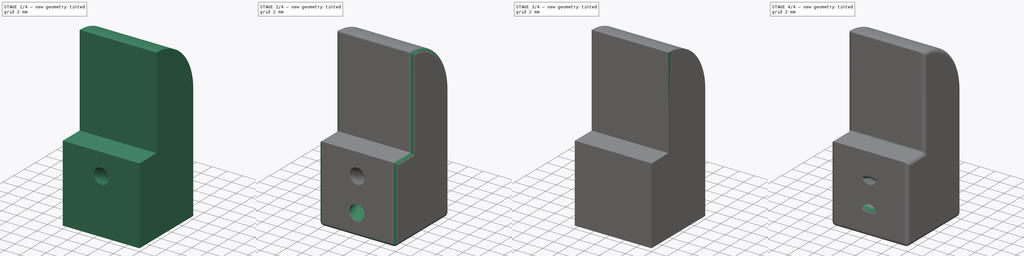
[diagram: build sequence overview — one tinted view per stage of 4, left to right]
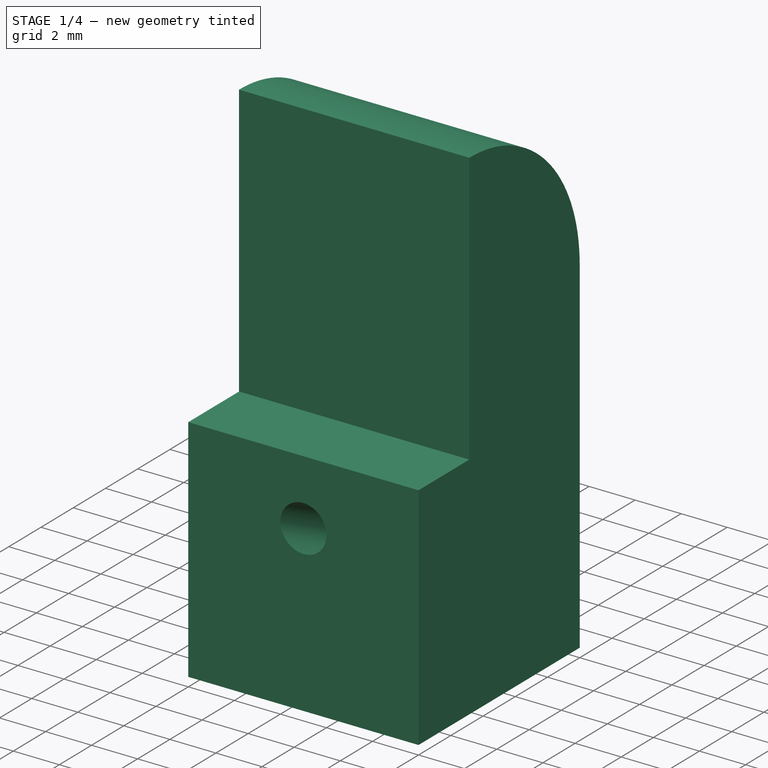
[diagram: stage 1 of 4 — iso view after this stage's code; geometry added in this stage tinted green]
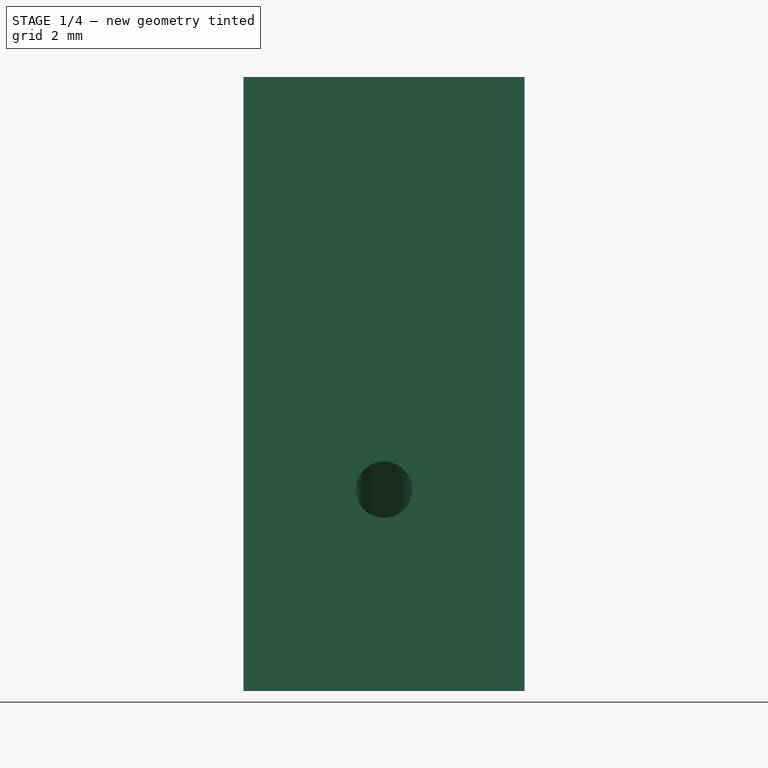
[diagram: stage 1 of 4 — front view after this stage's code; geometry added in this stage tinted green]
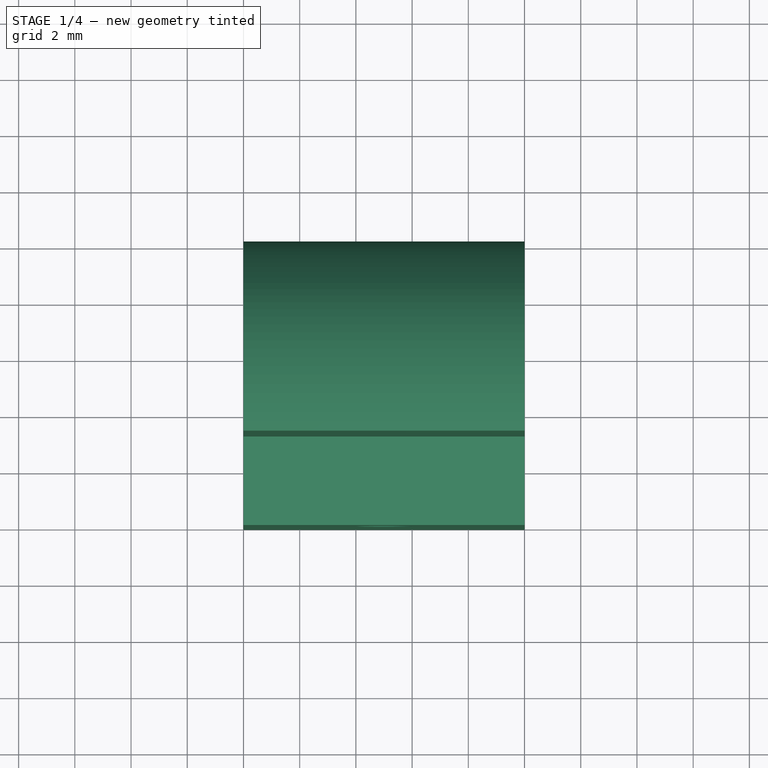
[diagram: stage 1 of 4 — top view after this stage's code; geometry added in this stage tinted green]
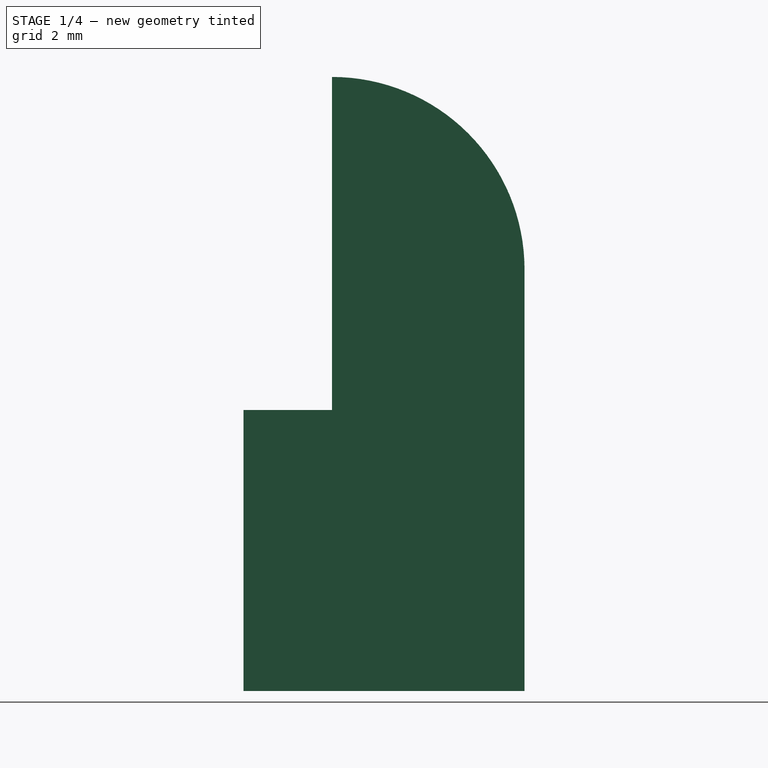
[diagram: stage 1 of 4 — right view after this stage's code; geometry added in this stage tinted green]
FCSTD DOCUMENT  (FreeCAD 0.22R36391 (Git))
Label: mirror-mount
License: All rights reserved
LicenseURL: http://en.wikipedia.org/wiki/All_rights_reserved
objects: PartDesign::Fillet×6, Sketcher::SketchObject×5, PartDesign::Pad×2, PartDesign::Body×2, PartDesign::Hole×1, PartDesign::SubtractivePipe×1, PartDesign::Plane×1, PartDesign::Mirrored×1
note: 29 computed .brp shape members not serialized (recipe doc carries the construction recipe); baked Part::Feature solids carry a one-line shape summary decoded from their .brp

FEATURE [PartDesign::Body] Body  label="screw"
  Group = -> [Sketch,Pad,Sketch001,Hole,Fillet,Fillet001]
  Origin = -> Origin
  Tip = -> Fillet001
FEATURE [Sketcher::SketchObject] Sketch002
  AttachmentSupport = -> [YZ_Plane001]
  FullyConstrained = true
  MapMode = 5
  Placement = pos=(0,0,0) rot=(0.57735,0.57735,0.57735;2.0944rad)
  sketch-geometry (7):
    g0: LineSegment StartX=0 StartY=0 StartZ=0 EndX=0 EndY=10 EndZ=0
    g1: LineSegment StartX=0 StartY=10 StartZ=0 EndX=3.15 EndY=10 EndZ=0
    g2: LineSegment StartX=3.15 StartY=10 StartZ=0 EndX=3.15 EndY=15 EndZ=0
    g3: LineSegment StartX=10 StartY=15 StartZ=0 EndX=10 EndY=0 EndZ=0
    g4: LineSegment StartX=10 StartY=0 StartZ=0 EndX=0 EndY=0 EndZ=0
    g5: ArcOfCircle CenterX=3.15 CenterY=15 CenterZ=0 NormalX=0 NormalY=0 NormalZ=1 AngleXU=0 Radius=6.85 StartAngle=3.26795e-07 EndAngle=1.5708
    g6: LineSegment StartX=3.15 StartY=21.85 StartZ=0 EndX=3.15 EndY=15 EndZ=0
  constraints (20):
    c: Coincident(g-1,g0)
    c: PointOnObject(g0,g-2)
    c: Coincident(g0,g1)
    c: Coincident(g1,g2)
    c: Vertical(g2)
    c: PointOnObject(g3,g-1)
    c: Vertical(g3)
    c: Coincident(g3,g4)
    c: Coincident(g4,g0)
    c: Angle(g5) = 1.5708
    c: Coincident(g5,g2)
    c: Coincident(g5,g3)
    c: Horizontal(g1)
    c: Coincident(g6,g5)
    c: Coincident(g6,g2)
    c: Vertical(g6)
    c: Distance(g1,g1) = 3.15
    c: Distance(g4,g4) = 10
    c: DistanceY(g0,g0) = 10
    c: DistanceY(g3,g3) = 15
FEATURE [PartDesign::Pad] Pad001
  Direction = (1,0,0)
  Length = 10
  Length2 = 10
  Placement = pos=(0,0,0) rot=(0.57735,0.57735,0.57735;2.0944rad)
  Profile = -> Sketch002
  ReferenceAxis = -> Sketch002 [N_Axis]
  Suppressed = false
  Type = 0
FEATURE [PartDesign::Fillet] Fillet003
  Base = -> Pad001
  BaseFeature = -> Pad001
  Placement = pos=(0,0,0) rot=(0.57735,0.57735,0.57735;2.0944rad)
  Radius = 0.2
  SupportTransform = false
  Suppressed = false
  UseAllEdges = false
FEATURE [Sketcher::SketchObject] Sketch003
  AttachmentSupport = -> [Pad001]
  ExternalGeometry = -> [Pad001]
  FullyConstrained = true
  MapMode = 5
  Placement = pos=(2.2e-15,10,0) rot=(0.57735,0.57735,0.57735;4.18879rad)
  sketch-geometry (1):
    g0: Circle CenterX=2.5 CenterY=5 CenterZ=0 NormalX=0 NormalY=0 NormalZ=1 AngleXU=0 Radius=1
  constraints (3):
    c: Radius(g0) = 1
    c: DistanceX(g-1,g0) = 2.5
    c: DistanceY(g-1,g0) = 5
FEATURE [Sketcher::SketchObject] Sketch004
  AttachmentSupport = -> [YZ_Plane001]
  ExternalGeometry = -> [Sketch003]
  FullyConstrained = false
  MapMode = 5
  Placement = pos=(0,0,0) rot=(0.57735,0.57735,0.57735;2.0944rad)
  sketch-geometry (2):
    g0: GeomPoint X=10 Y=2.5 Z=0
    g1: LineSegment StartX=10 StartY=2.5 StartZ=0 EndX=0 EndY=7.16308 EndZ=0
FEATURE [PartDesign::SubtractivePipe] SubtractivePipe
  AuxilleryCurvelinear = true
  AuxillerySpineTangent = false
  BaseFeature = -> Fillet003
  Binormal = (0,0,0)
  Mode = 0
  Placement = pos=(0,0,0) rot=(0.57735,0.57735,0.57735;2.0944rad)
  Profile = -> Sketch003 [Edge1]
  Spine = -> Sketch004
  SpineTangent = false
  Suppressed = false
  Transformation = 0
  Transition = 0
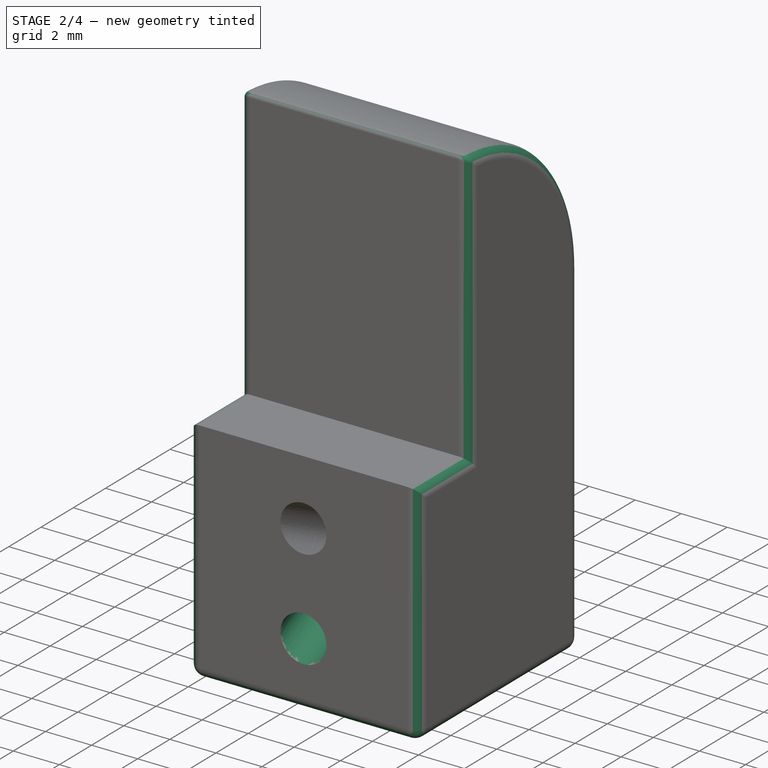
[diagram: stage 2 of 4 — iso view after this stage's code; geometry added in this stage tinted green]
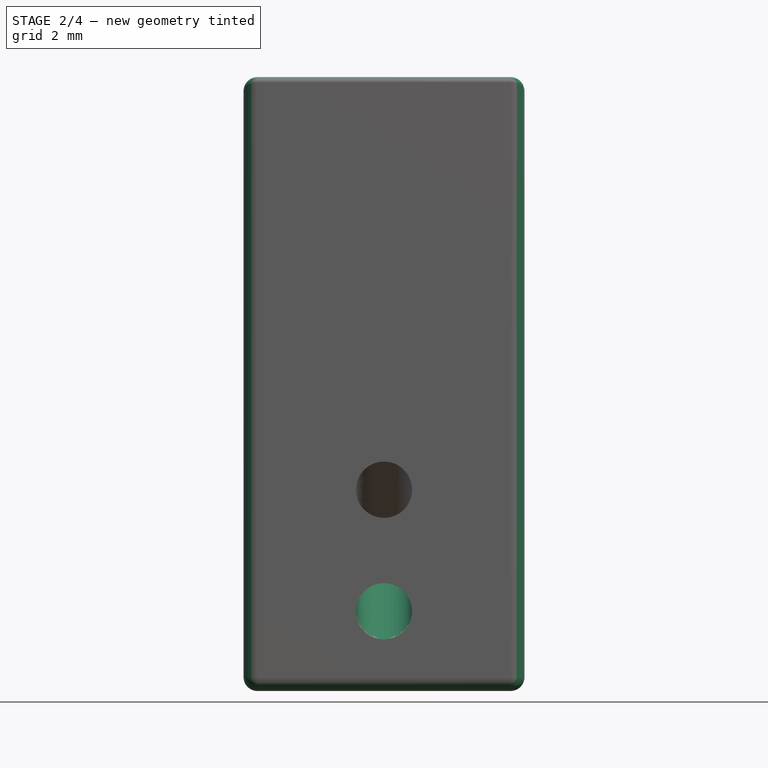
[diagram: stage 2 of 4 — front view after this stage's code; geometry added in this stage tinted green]
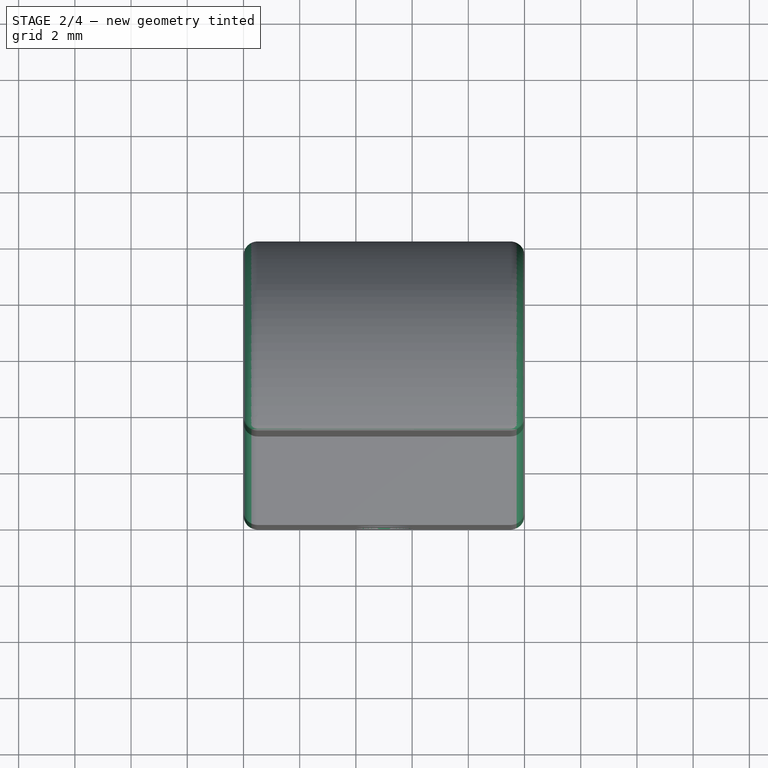
[diagram: stage 2 of 4 — top view after this stage's code; geometry added in this stage tinted green]
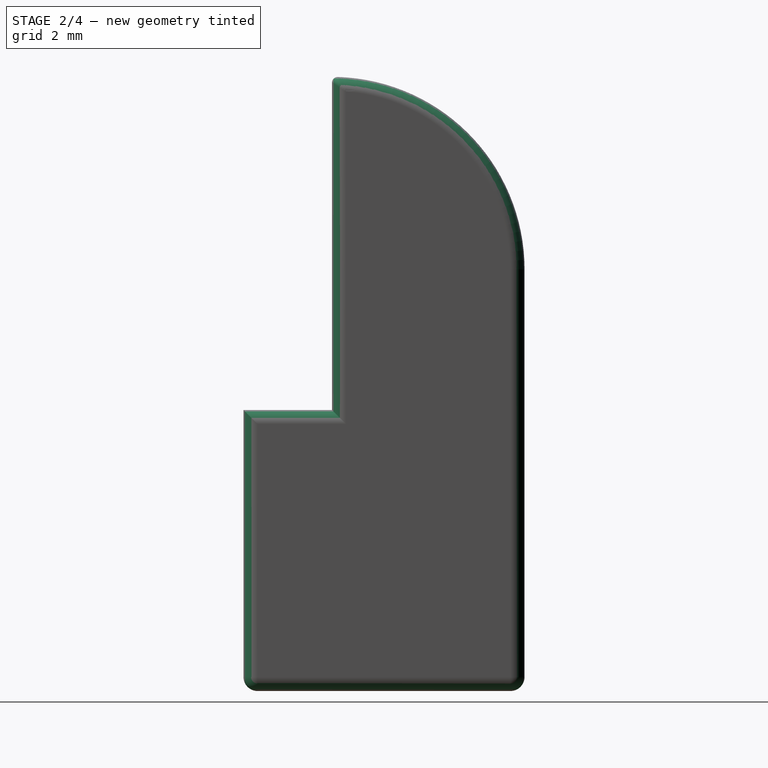
[diagram: stage 2 of 4 — right view after this stage's code; geometry added in this stage tinted green]
FEATURE [PartDesign::Plane] DatumPlane
  AttachmentOffset = pos=(0,0,5) rot=(0,0,1;0rad)
  AttachmentSupport = -> [XY_Plane001]
  Length = 60
  MapMode = 5
  Placement = pos=(0,0,5) rot=(0,0,1;0rad)
  ResizeMode = 0
  Width = 60
FEATURE [PartDesign::Mirrored] Mirrored
  BaseFeature = -> SubtractivePipe
  MirrorPlane = -> DatumPlane
  Originals = -> [SubtractivePipe]
  Placement = pos=(0,0,0) rot=(0.57735,0.57735,0.57735;2.0944rad)
  Suppressed = false
FEATURE [PartDesign::Fillet] Fillet004
  Base = -> Mirrored [Face3,Face5,Face4]
  BaseFeature = -> Mirrored
  Placement = pos=(0,0,0) rot=(0.57735,0.57735,0.57735;2.0944rad)
  Radius = 0.5
  SupportTransform = false
  Suppressed = false
  UseAllEdges = false
FEATURE [PartDesign::Fillet] Fillet005
  Base = -> Fillet004 [Edge58,Edge9,Edge76]
  BaseFeature = -> Fillet004
  Placement = pos=(0,0,0) rot=(0.57735,0.57735,0.57735;2.0944rad)
  Radius = 0.2
  SupportTransform = false
  Suppressed = false
  UseAllEdges = false
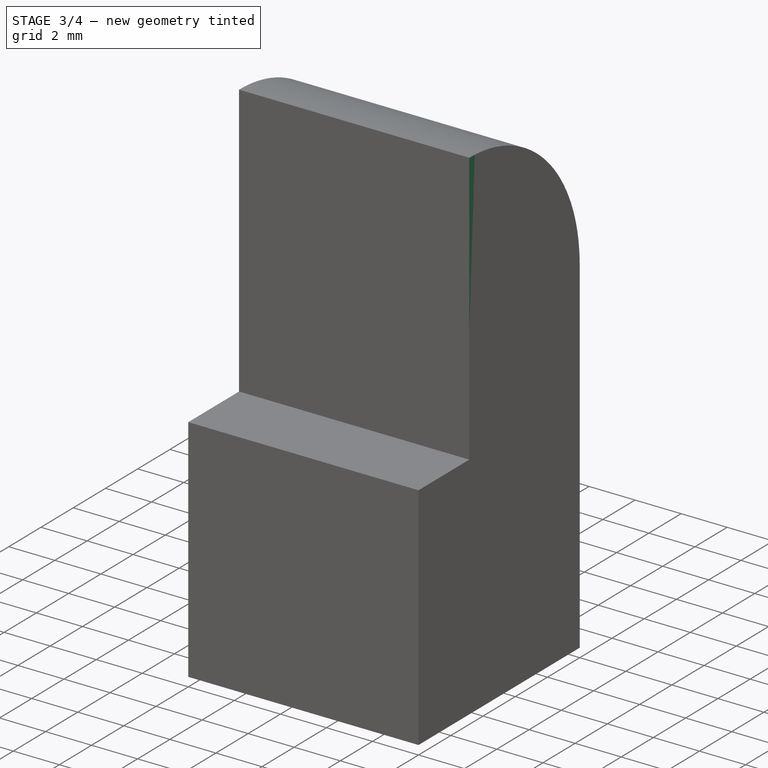
[diagram: stage 3 of 4 — iso view after this stage's code; geometry added in this stage tinted green]
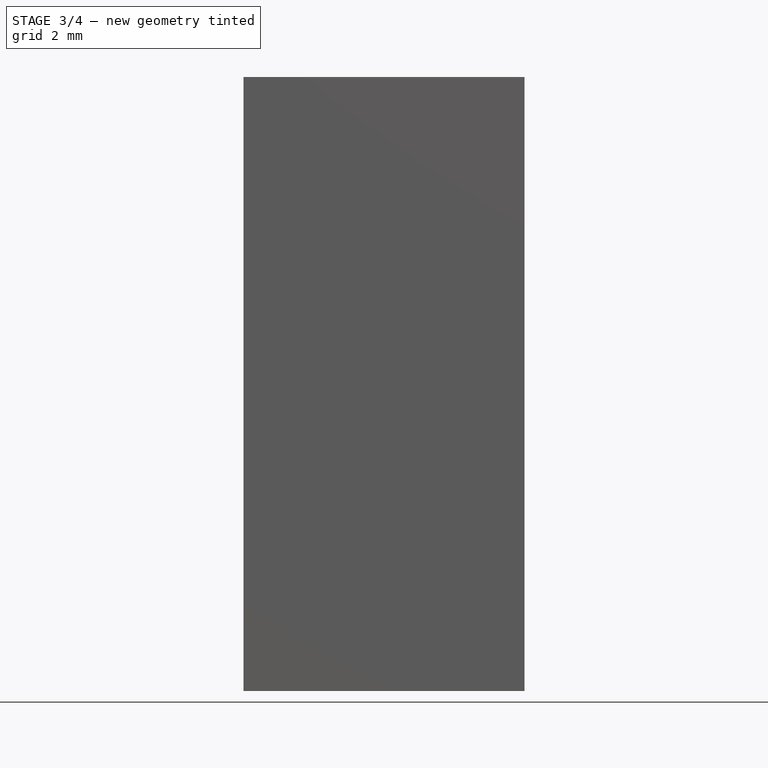
[diagram: stage 3 of 4 — front view after this stage's code; geometry added in this stage tinted green]
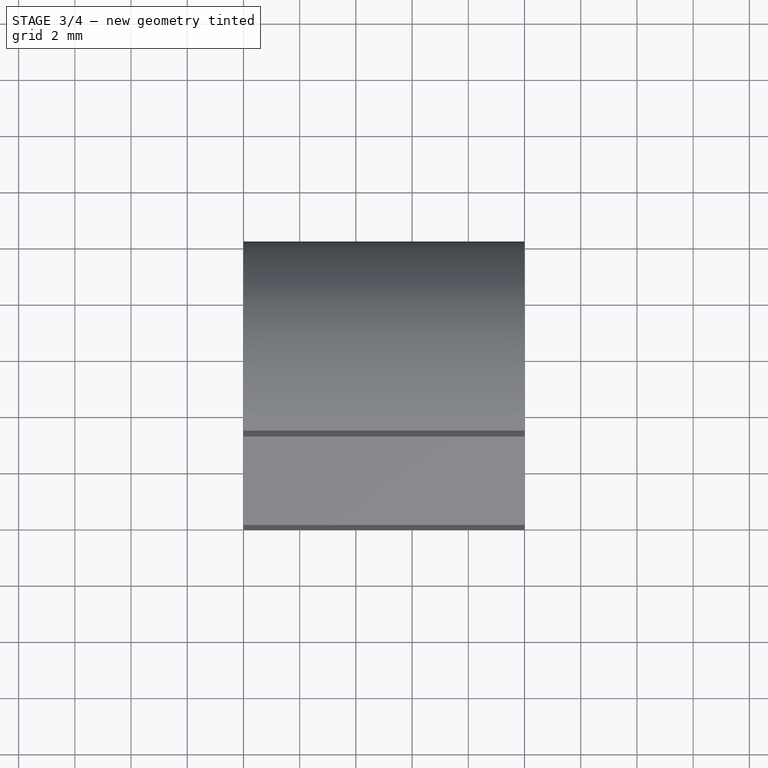
[diagram: stage 3 of 4 — top view after this stage's code; geometry added in this stage tinted green]
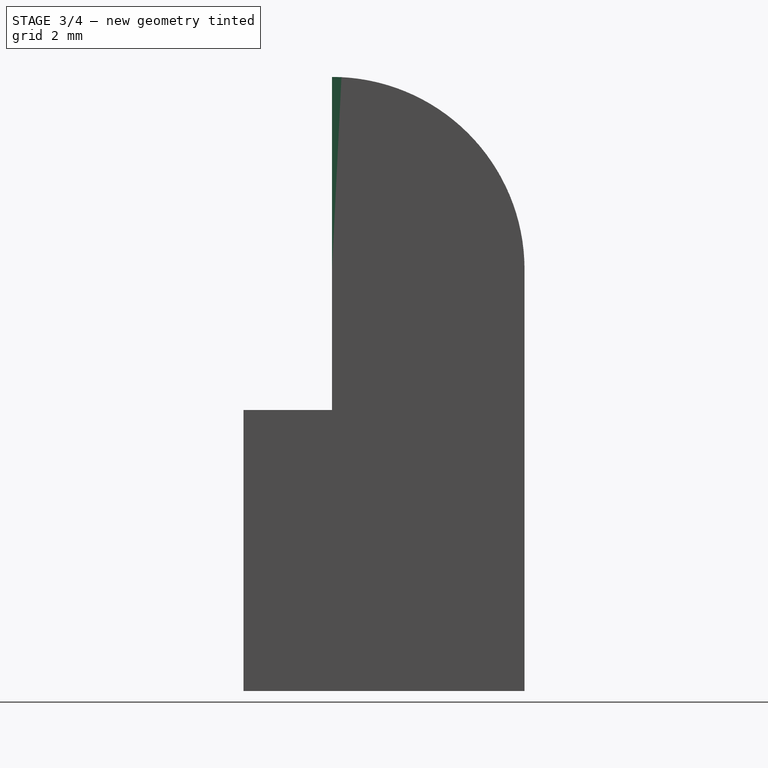
[diagram: stage 3 of 4 — right view after this stage's code; geometry added in this stage tinted green]
FEATURE [Sketcher::SketchObject] Sketch
  AttachmentSupport = -> [YZ_Plane]
  FullyConstrained = true
  MapMode = 5
  Placement = pos=(0,0,0) rot=(0.57735,0.57735,0.57735;2.0944rad)
  sketch-geometry (7):
    g0: LineSegment StartX=0 StartY=0 StartZ=0 EndX=0 EndY=10 EndZ=0
    g1: LineSegment StartX=0 StartY=10 StartZ=0 EndX=3.15 EndY=10 EndZ=0
    g2: LineSegment StartX=3.15 StartY=10 StartZ=0 EndX=3.15 EndY=15 EndZ=0
    g3: LineSegment StartX=10 StartY=15 StartZ=0 EndX=10 EndY=0 EndZ=0
    g4: LineSegment StartX=10 StartY=0 StartZ=0 EndX=0 EndY=0 EndZ=0
    g5: ArcOfCircle CenterX=3.15 CenterY=15 CenterZ=0 NormalX=0 NormalY=0 NormalZ=1 AngleXU=0 Radius=6.85 StartAngle=3.26795e-07 EndAngle=1.5708
    g6: LineSegment StartX=3.15 StartY=21.85 StartZ=0 EndX=3.15 EndY=15 EndZ=0
  constraints (20):
    c: Coincident(g-1,g0)
    c: PointOnObject(g0,g-2)
    c: Coincident(g0,g1)
    c: Coincident(g1,g2)
    c: Vertical(g2)
    c: PointOnObject(g3,g-1)
    c: Vertical(g3)
    c: Coincident(g3,g4)
    c: Coincident(g4,g0)
    c: Angle(g5) = 1.5708
    c: Coincident(g5,g2)
    c: Coincident(g5,g3)
    c: Horizontal(g1)
    c: Coincident(g6,g5)
    c: Coincident(g6,g2)
    c: Vertical(g6)
    c: Distance(g1,g1) = 3.15
    c: Distance(g4,g4) = 10
    c: DistanceY(g0,g0) = 10
    c: DistanceY(g3,g3) = 15
FEATURE [PartDesign::Pad] Pad
  Direction = (1,0,0)
  Length = 10
  Length2 = 10
  Placement = pos=(0,0,0) rot=(0.57735,0.57735,0.57735;2.0944rad)
  Profile = -> Sketch
  ReferenceAxis = -> Sketch [N_Axis]
  Suppressed = false
  Type = 0
FEATURE [PartDesign::Fillet] Fillet006
  Base = -> Fillet005 [Edge15,Edge14]
  BaseFeature = -> Fillet005
  Placement = pos=(0,0,0) rot=(0.57735,0.57735,0.57735;2.0944rad)
  Radius = 0.5
  SupportTransform = false
  Suppressed = false
  UseAllEdges = false
FEATURE [PartDesign::Body] Body001  label="nail"
  Group = -> [Sketch002,Pad001,Sketch003,Fillet003,Sketch004,SubtractivePipe,DatumPlane,Mirrored,Fillet004,Fillet005,Fillet006]
  Origin = -> Origin001
  Tip = -> Fillet006
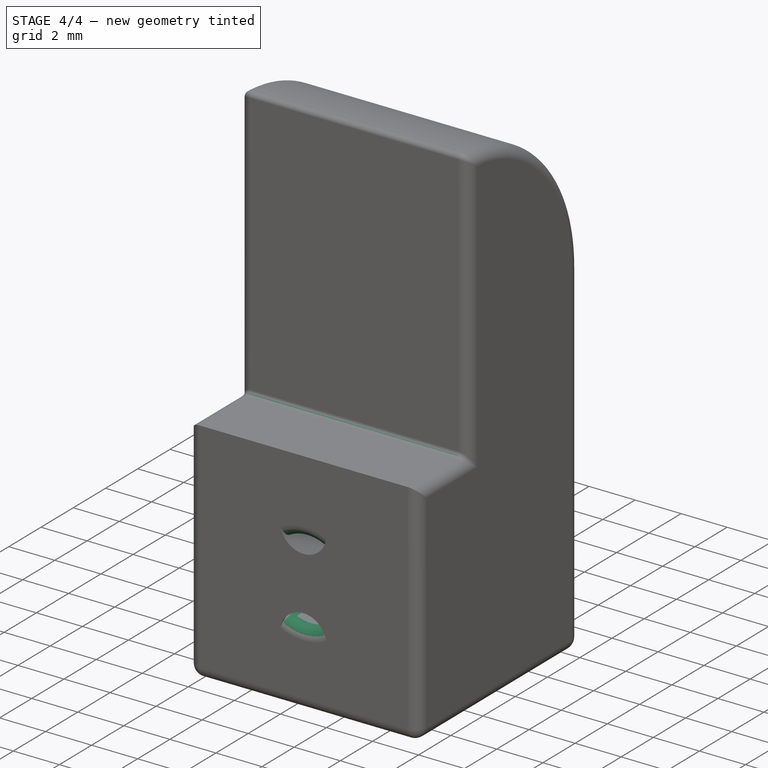
[diagram: stage 4 of 4 — iso view after this stage's code; geometry added in this stage tinted green]
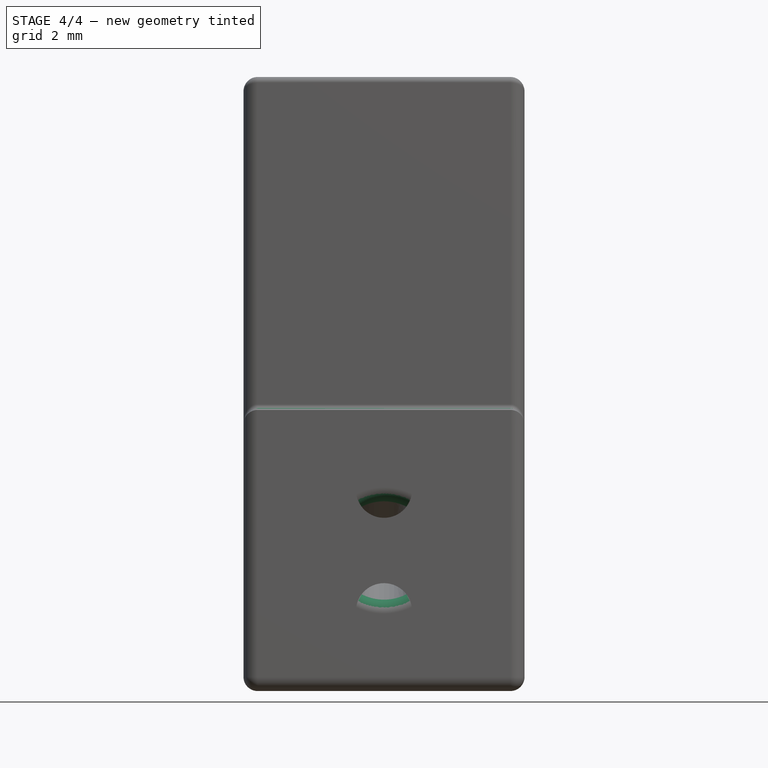
[diagram: stage 4 of 4 — front view after this stage's code; geometry added in this stage tinted green]
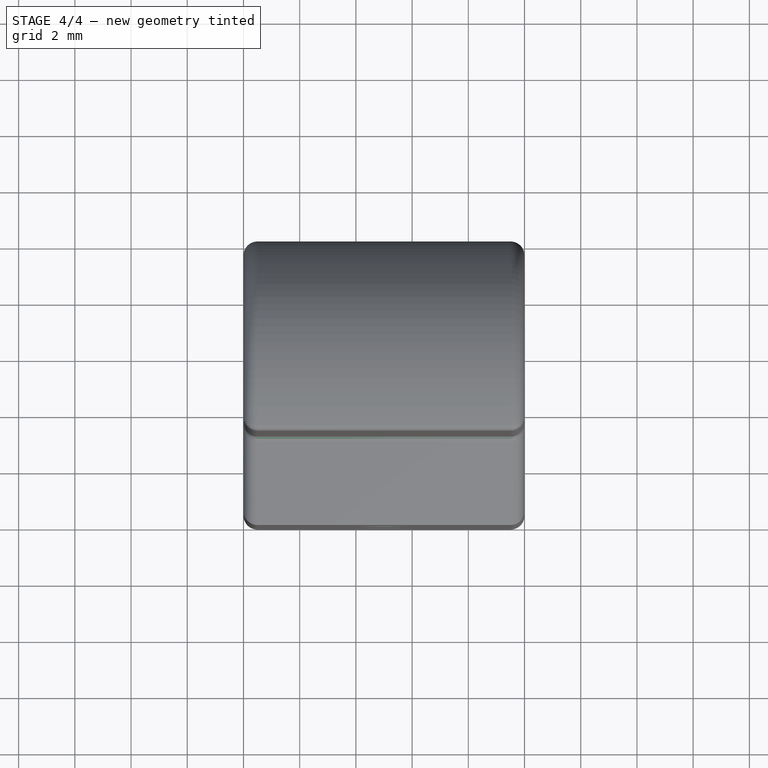
[diagram: stage 4 of 4 — top view after this stage's code; geometry added in this stage tinted green]
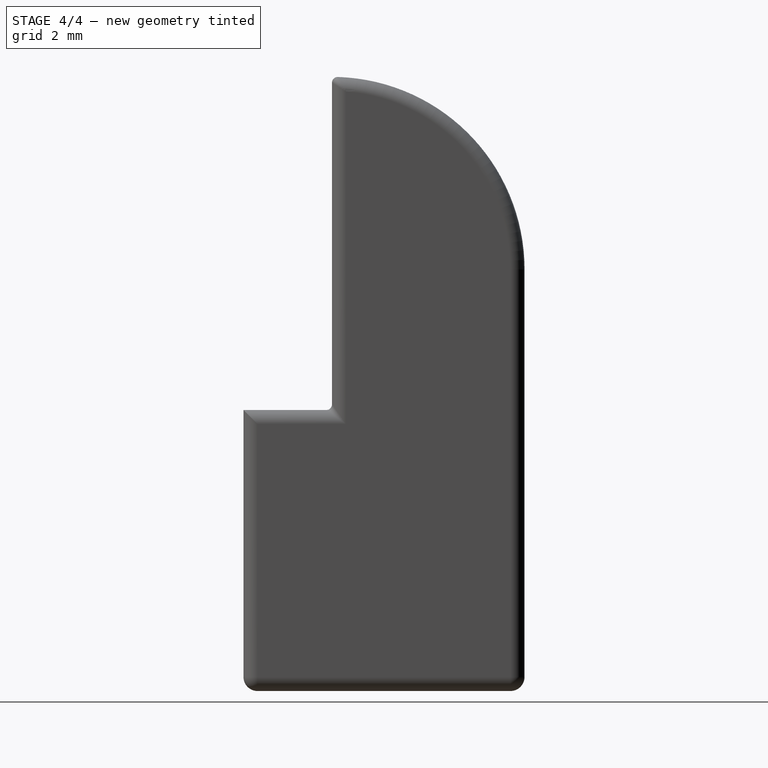
[diagram: stage 4 of 4 — right view after this stage's code; geometry added in this stage tinted green]
FEATURE [Sketcher::SketchObject] Sketch001
  AttachmentSupport = -> [Pad]
  FullyConstrained = true
  MapMode = 5
  Placement = pos=(2.2e-15,10,0) rot=(0.57735,0.57735,0.57735;4.18879rad)
  sketch-geometry (1):
    g0: Circle CenterX=5 CenterY=5 CenterZ=0 NormalX=0 NormalY=0 NormalZ=1 AngleXU=0 Radius=1.5
  constraints (3):
    c: Radius(g0) = 1.5
    c: DistanceX(g-1,g0) = 5
    c: DistanceY(g-1,g0) = 5
FEATURE [PartDesign::Hole] Hole
  BaseFeature = -> Pad
  CustomThreadClearance = 0
  Depth = 47.0717
  DepthType = 1
  Diameter = 3.5
  DrillForDepth = false
  DrillPoint = 1
  DrillPointAngle = 117
  HoleCutCountersinkAngle = 90
  HoleCutCustomValues = false
  HoleCutDepth = 2.15
  HoleCutDiameter = 6.15
  HoleCutType = 1
  ModelThread = false
  Placement = pos=(0,0,0) rot=(0.57735,0.57735,0.57735;2.0944rad)
  Profile = -> Sketch001
  Suppressed = false
  Tapered = false
  TaperedAngle = 90
  ThreadClass = 0
  ThreadDepth = 47.0717
  ThreadDepthType = 0
  ThreadDirection = 0
  ThreadFit = 0
  ThreadSize = 0
  ThreadType = 0
  Threaded = false
  UseCustomThreadClearance = false
FEATURE [PartDesign::Fillet] Fillet
  Base = -> Hole [Edge5,Face4,Face3,Face5,Face8]
  BaseFeature = -> Hole
  Placement = pos=(0,0,0) rot=(0.57735,0.57735,0.57735;2.0944rad)
  Radius = 0.5
  SupportTransform = false
  Suppressed = false
  UseAllEdges = false
FEATURE [PartDesign::Fillet] Fillet001
  Base = -> Fillet [Edge48,Edge8]
  BaseFeature = -> Fillet
  Placement = pos=(0,0,0) rot=(0.57735,0.57735,0.57735;2.0944rad)
  Radius = 0.2
  SupportTransform = false
  Suppressed = false
  UseAllEdges = false
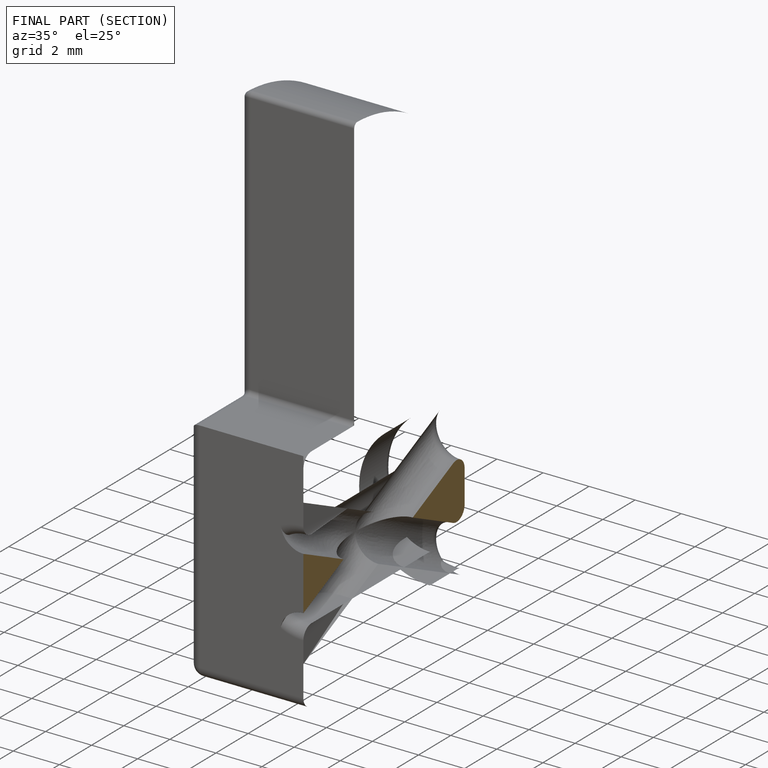
[diagram: finished part — half-section view (interior)]
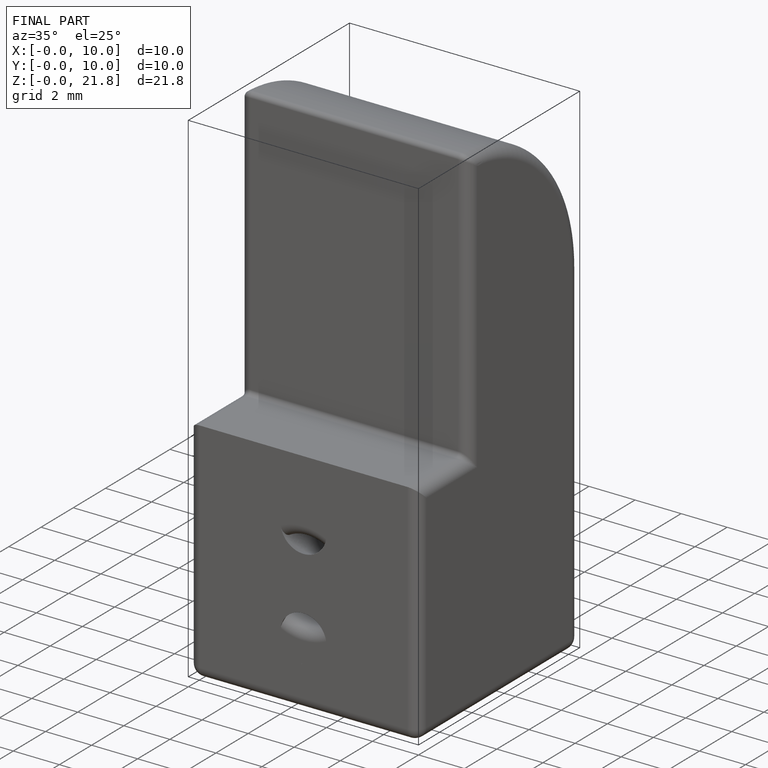
[diagram: finished part — iso view with bounding-box wireframe]
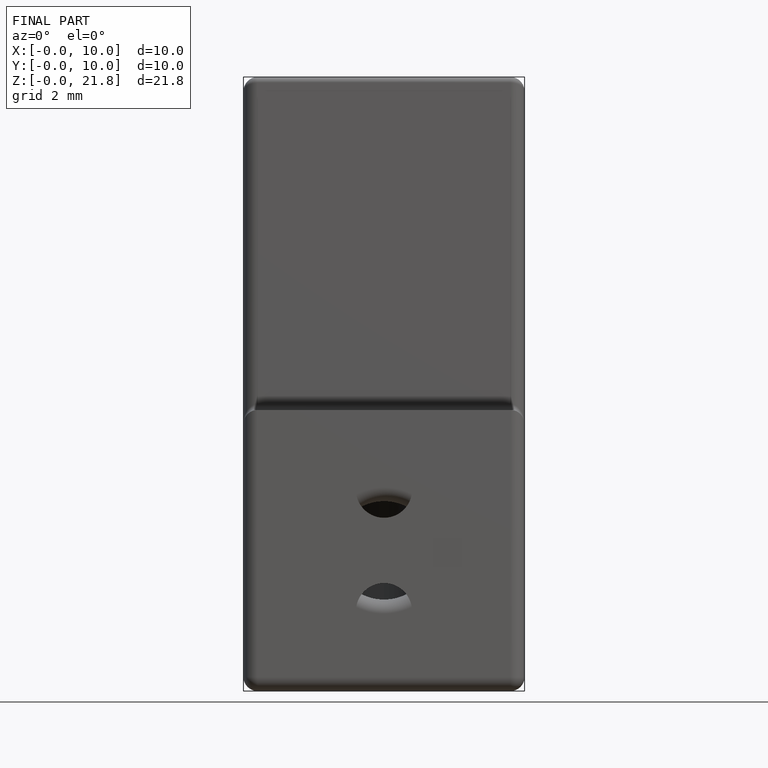
[diagram: finished part — front view with bounding-box wireframe]
